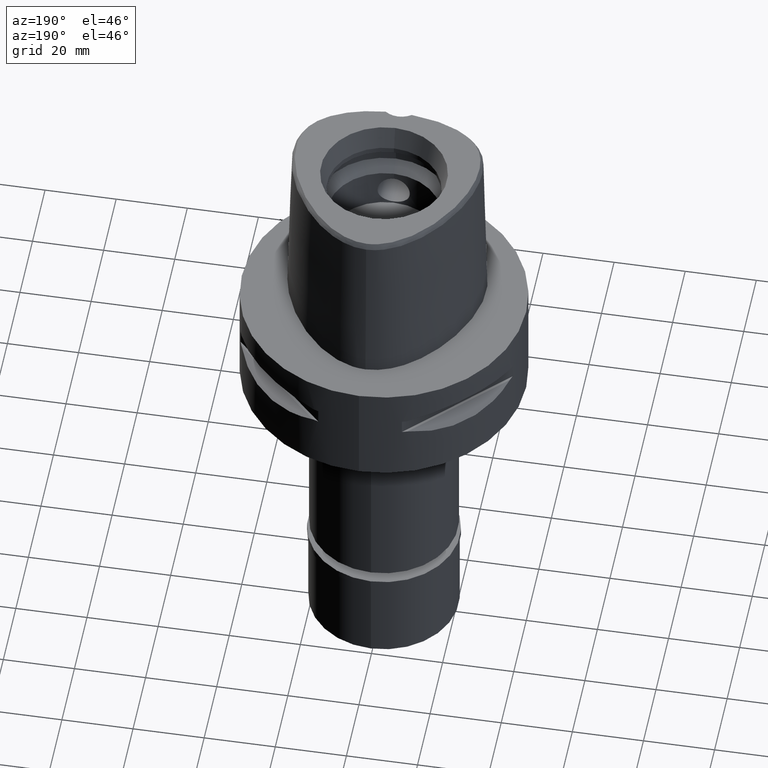
[diagram: clean part render]
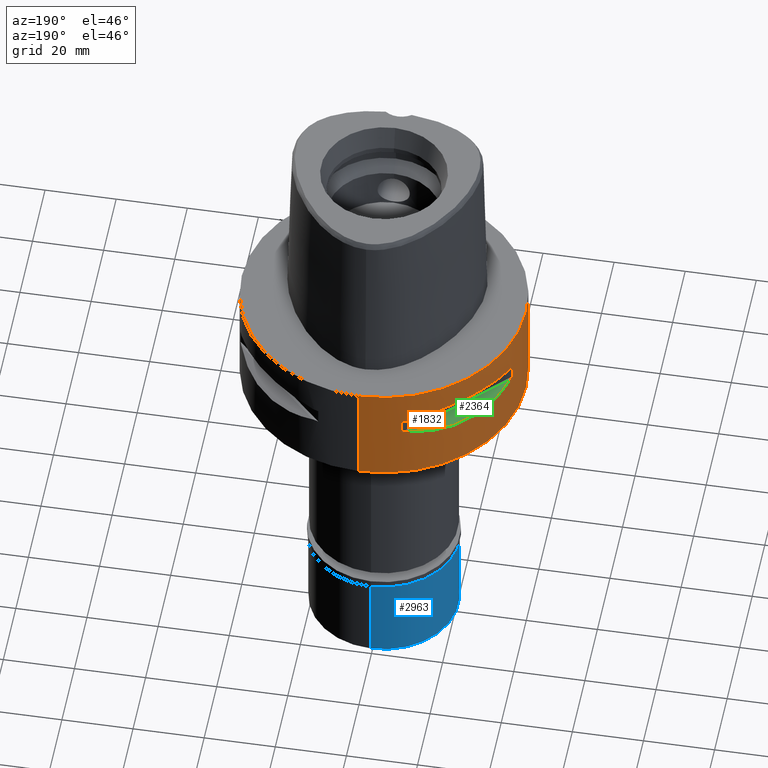
[diagram: same view with three faces highlighted in distinct colors, each labeled with its STEP entity id]
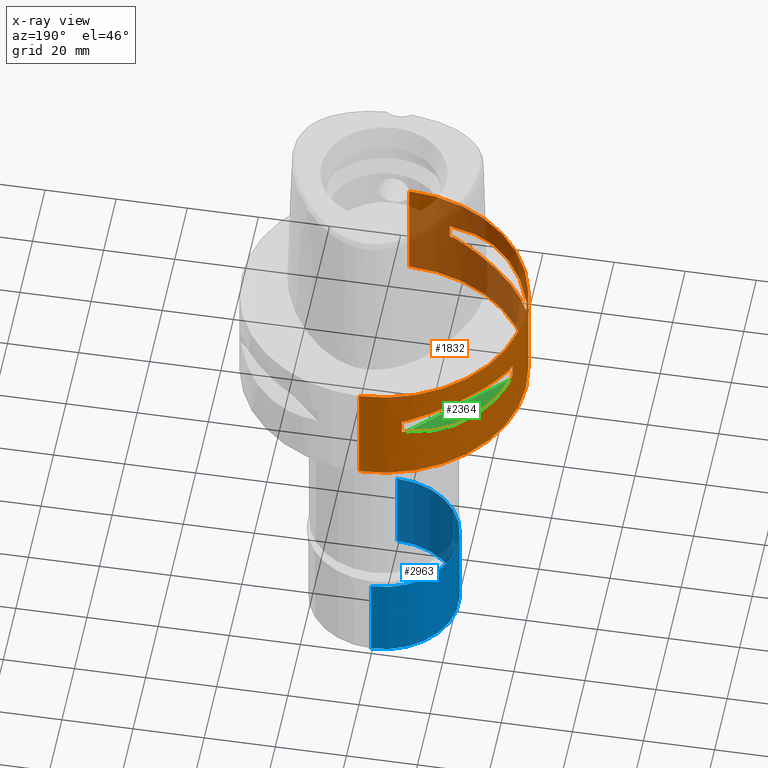
[diagram: x-ray of the same camera — body ghosted, the three highlighted faces saturated]
A machine part, auxiliary view with three faces highlighted in distinct colors.
The next image is the same camera in x-ray (body ghosted, the three faces saturated) — at least one of them is partly hidden behind the body in this view.
Their STEP definitions:

[orange] entity #1832 — the highlighted cylindrical surface (partial cylindrical patch) has radius 40 mm, axis along (0, 0, -1).
#71 = CARTESIAN_POINT ( 'NONE',  ( -11.76033600280999991, 38.23211342708000160, -9.950000000000001066 ) ) ;
#76 = CARTESIAN_POINT ( 'NONE',  ( -38.23211342708000160, 11.76033600280999991, -9.950000000000001066 ) ) ;
#97 = VECTOR ( 'NONE', #1204, 1000.000000000000000 ) ;
#108 = CARTESIAN_POINT ( 'NONE',  ( -37.74622163926999718, 13.23717311056000057, -14.05000000000000071 ) ) ;
#133 = CARTESIAN_POINT ( 'NONE',  ( -23.95303639238277782, 32.16767032370128732, -16.14729882780219228 ) ) ;
#187 = CARTESIAN_POINT ( 'NONE',  ( -11.76033600280999991, 38.23211342708000160, -14.05000000000000071 ) ) ;
#207 = VERTEX_POINT ( 'NONE', #76 ) ;
#232 = CARTESIAN_POINT ( 'NONE',  ( 0.0000000000000000000, 1.291390049700999962E-14, -9.950000000000001066 ) ) ;
#262 = DIRECTION ( 'NONE',  ( 0.0000000000000000000, 0.0000000000000000000, 1.000000000000000000 ) ) ;
#288 = VERTEX_POINT ( 'NONE', #591 ) ;
#290 = CARTESIAN_POINT ( 'NONE',  ( -37.74622163926999718, 13.23717311056000057, -9.950000000002001244 ) ) ;
#292 = CARTESIAN_POINT ( 'NONE',  ( -11.76033600280999991, -38.23211342708000160, -9.950000000000001066 ) ) ;
#296 = DIRECTION ( 'NONE',  ( 0.0000000000000000000, 0.0000000000000000000, -1.000000000000000000 ) ) ;
#317 = CARTESIAN_POINT ( 'NONE',  ( 0.0000000000000000000, 40.00000000000000000, -30.00000000000000000 ) ) ;
#347 = CARTESIAN_POINT ( 'NONE',  ( -33.76566745674986691, -21.44484052678344455, -15.77571175125594394 ) ) ;
#357 = LINE ( 'NONE', #4229, #3936 ) ;
#396 = CARTESIAN_POINT ( 'NONE',  ( -25.62819065485258463, -30.77249687755037399, -16.26160051742709101 ) ) ;
#413 = LINE ( 'NONE', #71, #1920 ) ;
#414 = DIRECTION ( 'NONE',  ( 0.0000000000000000000, 1.000000000000000000, 0.0000000000000000000 ) ) ;
#420 = B_SPLINE_CURVE_WITH_KNOTS ( 'NONE', 3,
 ( #879, #3166, #4347, #2443, #3629, #1243, #2754, #3209, #4690, #1618, #3966, #133, #4296, #809, #4740, #3988, #1271, #495, #1980, #2053, #4318, #2844, #1218, #3942, #3606, #108 ),
 .UNSPECIFIED., .F., .F.,
 ( 4, 1, 1, 1, 1, 1, 1, 2, 2, 2, 1, 1, 1, 1, 1, 1, 2, 2, 4 ),
 ( 0.0000000000000000000, 0.1250000000000191513, 0.1875000000000286160, 0.2187500000000333344, 0.2343750000000358602, 0.2421875000000370537, 0.2460937500000373590, 0.2480468750000373868, 0.2500000000000374145, 0.5000000000000354161, 0.6250000000000345279, 0.6875000000000339728, 0.7187500000000336398, 0.7343750000000335287, 0.7421875000000334177, 0.7460937500000334177, 0.7480468750000331957, 0.7500000000000330846, 1.000000000000000000 ),
 .UNSPECIFIED. ) ;
#495 = CARTESIAN_POINT ( 'NONE',  ( -33.39247868354666338, 22.02254759438567788, -15.85920599531292652 ) ) ;
#591 = CARTESIAN_POINT ( 'NONE',  ( -38.23211342708000160, -11.76033600280999991, -9.950000000000001066 ) ) ;
#647 = EDGE_LOOP ( 'NONE', ( #3137, #4172, #1458, #4934, #1466, #1773, #4357, #4636 ) ) ;
#701 = DIRECTION ( 'NONE',  ( 0.0000000000000000000, 0.0000000000000000000, -1.000000000000000000 ) ) ;
#705 = VERTEX_POINT ( 'NONE', #187 ) ;
#724 = CARTESIAN_POINT ( 'NONE',  ( -13.23717311056000057, 37.74622163926999718, -9.950000000002001244 ) ) ;
#735 = VERTEX_POINT ( 'NONE', #2167 ) ;
#752 = CARTESIAN_POINT ( 'NONE',  ( -26.20795918968521221, 30.36058330523860960, -7.669882118585189090 ) ) ;
#806 = CARTESIAN_POINT ( 'NONE',  ( -30.34851826271897224, -26.21995747454407422, -16.33009976522122741 ) ) ;
#809 = CARTESIAN_POINT ( 'NONE',  ( -29.31642813391150426, 27.25214773984385630, -16.33014064577301028 ) ) ;
#814 = CARTESIAN_POINT ( 'NONE',  ( -36.74073341983640972, -16.10435486224564983, -9.189966798093660572 ) ) ;
#826 = DIRECTION ( 'NONE',  ( 0.0000000000000000000, 0.0000000000000000000, 1.000000000000000000 ) ) ;
#837 = CARTESIAN_POINT ( 'NONE',  ( -35.41596287858682501, -18.83173199168497192, -8.619939612229350345 ) ) ;
#848 = CARTESIAN_POINT ( 'NONE',  ( -37.74622163926999718, -13.23717311056000057, -9.950000000002001244 ) ) ;
#879 = CARTESIAN_POINT ( 'NONE',  ( -13.23717311056000057, 37.74622163926999718, -14.05000000000000071 ) ) ;
#918 = AXIS2_PLACEMENT_3D ( 'NONE', #1600, #3170, #3099 ) ;
#961 = CARTESIAN_POINT ( 'NONE',  ( -38.23211342708000160, -11.76033600280999991, -14.05000000000000071 ) ) ;
#970 = ORIENTED_EDGE ( 'NONE', *, *, #1305, .T. ) ;
#1037 = DIRECTION ( 'NONE',  ( 0.0000000000000000000, 0.0000000000000000000, 1.000000000000000000 ) ) ;
#1050 = ORIENTED_EDGE ( 'NONE', *, *, #4009, .F. ) ;
#1059 = CARTESIAN_POINT ( 'NONE',  ( 0.0000000000000000000, 1.291390049700999962E-14, -14.05000000000000071 ) ) ;
#1077 = VERTEX_POINT ( 'NONE', #3943 ) ;
#1084 = LINE ( 'NONE', #2239, #4574 ) ;
#1171 = CARTESIAN_POINT ( 'NONE',  ( 0.0000000000000000000, 1.291390049700999962E-14, 5.450000000000000178 ) ) ;
#1196 = CARTESIAN_POINT ( 'NONE',  ( -21.52391145898895886, -33.71529052282375005, -15.78742602700008035 ) ) ;
#1204 = DIRECTION ( 'NONE',  ( 0.0000000000000000000, 0.0000000000000000000, -1.000000000000000000 ) ) ;
#1218 = CARTESIAN_POINT ( 'NONE',  ( -33.72697758561022852, 21.50560509406268750, -15.78472370821743276 ) ) ;
#1238 = AXIS2_PLACEMENT_3D ( 'NONE', #1975, #826, #414 ) ;
#1243 = CARTESIAN_POINT ( 'NONE',  ( -20.91613153242406398, 34.09685321779756606, -15.69507322892952139 ) ) ;
#1263 = LINE ( 'NONE', #4731, #2077 ) ;
#1271 = CARTESIAN_POINT ( 'NONE',  ( -33.03835700910098438, 22.55421454657008340, -15.93168855142969598 ) ) ;
#1305 = EDGE_CURVE ( 'NONE', #4615, #4543, #2379, .T. ) ;
#1325 = CIRCLE ( 'NONE', #3678, 39.99999999999999289 ) ;
#1345 = AXIS2_PLACEMENT_3D ( 'NONE', #232, #262, #2515 ) ;
#1373 = VERTEX_POINT ( 'NONE', #2462 ) ;
#1449 = CARTESIAN_POINT ( 'NONE',  ( -34.09685321779600997, -20.91613153242858658, -15.69507322893076662 ) ) ;
#1458 = ORIENTED_EDGE ( 'NONE', *, *, #2558, .T. ) ;
#1466 = ORIENTED_EDGE ( 'NONE', *, *, #4043, .T. ) ;
#1468 = CARTESIAN_POINT ( 'NONE',  ( -36.74070924255632065, 16.10442380453153177, -9.189948522856575153 ) ) ;
#1493 = CIRCLE ( 'NONE', #4331, 39.99999999999997868 ) ;
#1503 = CARTESIAN_POINT ( 'NONE',  ( -37.74622163926999718, -13.23717311056000057, -14.05000000000000071 ) ) ;
#1570 = CARTESIAN_POINT ( 'NONE',  ( -27.25214773983183036, -29.31642813391925273, -16.33014064577127655 ) ) ;
#1572 = CIRCLE ( 'NONE', #4803, 39.99999999999999289 ) ;
#1593 = ORIENTED_EDGE ( 'NONE', *, *, #3123, .T. ) ;
#1600 = CARTESIAN_POINT ( 'NONE',  ( 0.0000000000000000000, 1.291390049700999962E-14, -14.05000000000000071 ) ) ;
#1618 = CARTESIAN_POINT ( 'NONE',  ( -21.44484052678305730, 33.76566745674997350, -15.77571175125580893 ) ) ;
#1637 = ORIENTED_EDGE ( 'NONE', *, *, #2464, .T. ) ;
#1725 = DIRECTION ( 'NONE',  ( -0.9436555409818374596, 0.3309293277639132058, 0.0000000000000000000 ) ) ;
#1750 = VECTOR ( 'NONE', #4211, 1000.000000000000000 ) ;
#1773 = ORIENTED_EDGE ( 'NONE', *, *, #2428, .F. ) ;
#1818 = ORIENTED_EDGE ( 'NONE', *, *, #3214, .F. ) ;
#1832 = ADVANCED_FACE ( 'NONE', ( #1932, #2621, #3485 ), #4166, .T. ) ;
#1843 = DIRECTION ( 'NONE',  ( 0.0000000000000000000, 0.0000000000000000000, 1.000000000000000000 ) ) ;
#1869 = CARTESIAN_POINT ( 'NONE',  ( -30.36058330523860960, 26.20795918968521576, -7.669863843575454254 ) ) ;
#1896 = EDGE_CURVE ( 'NONE', #2179, #3882, #4366, .T. ) ;
#1897 = CARTESIAN_POINT ( 'NONE',  ( -18.83173199168500744, 35.41596287858683212, -8.619939612229350345 ) ) ;
#1916 = LINE ( 'NONE', #4676, #97 ) ;
#1920 = VECTOR ( 'NONE', #2001, 1000.000000000000000 ) ;
#1932 = FACE_OUTER_BOUND ( 'NONE', #3853, .T. ) ;
#1935 = EDGE_CURVE ( 'NONE', #4832, #1077, #1325, .T. ) ;
#1941 = CARTESIAN_POINT ( 'NONE',  ( -32.22577213862143708, -23.88355431031445875, -7.859897272588790784 ) ) ;
#1950 = VERTEX_POINT ( 'NONE', #4046 ) ;
#1957 = CARTESIAN_POINT ( 'NONE',  ( -23.60097336452268024, -32.30995221952120744, -16.06165603927522056 ) ) ;
#1975 = CARTESIAN_POINT ( 'NONE',  ( 0.0000000000000000000, 1.291390049700999962E-14, -30.00000000000000000 ) ) ;
#1980 = CARTESIAN_POINT ( 'NONE',  ( -33.56701934068217952, 21.75464223249340634, -15.82109001420632310 ) ) ;
#1985 = CARTESIAN_POINT ( 'NONE',  ( -23.88364259926271060, -32.22570670466006959, -7.859869859733161768 ) ) ;
#2001 = DIRECTION ( 'NONE',  ( 0.0000000000000000000, 0.0000000000000000000, -1.000000000000000000 ) ) ;
#2006 = CARTESIAN_POINT ( 'NONE',  ( 0.0000000000000000000, 1.291390049700999962E-14, -14.05000000000000071 ) ) ;
#2053 = CARTESIAN_POINT ( 'NONE',  ( -33.65365962422809787, 21.62017158009728846, -15.80156334789097095 ) ) ;
#2062 = EDGE_CURVE ( 'NONE', #3175, #207, #1493, .T. ) ;
#2072 = CARTESIAN_POINT ( 'NONE',  ( 0.0000000000000000000, 1.291390049700999962E-14, 1.243449787579999883E-14 ) ) ;
#2077 = VECTOR ( 'NONE', #3134, 1000.000000000000000 ) ;
#2105 = CARTESIAN_POINT ( 'NONE',  ( 0.0000000000000000000, 1.291390049700999962E-14, -9.950000000000001066 ) ) ;
#2115 = CARTESIAN_POINT ( 'NONE',  ( 0.0000000000000000000, 1.291390049700999962E-14, -9.950000000000001066 ) ) ;
#2167 = CARTESIAN_POINT ( 'NONE',  ( 0.0000000000000000000, 40.00000000000000000, 1.243449787579999883E-14 ) ) ;
#2179 = VERTEX_POINT ( 'NONE', #5021 ) ;
#2210 = CARTESIAN_POINT ( 'NONE',  ( -23.88355431031448006, 32.22577213862143708, -7.859897272588790784 ) ) ;
#2239 = CARTESIAN_POINT ( 'NONE',  ( -38.23211342708000160, -11.76033600280999991, -9.950000000000001066 ) ) ;
#2289 = CARTESIAN_POINT ( 'NONE',  ( -11.76033600280999991, -38.23211342708000160, -14.05000000000000071 ) ) ;
#2353 = VERTEX_POINT ( 'NONE', #2466 ) ;
#2370 = CARTESIAN_POINT ( 'NONE',  ( -37.74622163926999718, -13.23717311056000057, -9.950000000002001244 ) ) ;
#2379 = CIRCLE ( 'NONE', #1238, 40.00000000000000000 ) ;
#2397 = CARTESIAN_POINT ( 'NONE',  ( -37.74622163926999718, 13.23717311056000057, -9.950000000002001244 ) ) ;
#2404 = CIRCLE ( 'NONE', #3060, 40.00000000000000000 ) ;
#2428 = EDGE_CURVE ( 'NONE', #288, #4257, #1084, .T. ) ;
#2439 = VERTEX_POINT ( 'NONE', #2641 ) ;
#2443 = CARTESIAN_POINT ( 'NONE',  ( -19.18269457494219310, 35.11589783530285303, -15.40342377741356117 ) ) ;
#2462 = CARTESIAN_POINT ( 'NONE',  ( -13.23717311056000057, 37.74622163926999718, -9.950000000002001244 ) ) ;
#2464 = EDGE_CURVE ( 'NONE', #1373, #3175, #4720, .T. ) ;
#2466 = CARTESIAN_POINT ( 'NONE',  ( -13.23717311056000057, -37.74622163926999718, -9.950000000002001244 ) ) ;
#2468 = DIRECTION ( 'NONE',  ( 0.0000000000000000000, 0.0000000000000000000, -1.000000000000000000 ) ) ;
#2493 = EDGE_CURVE ( 'NONE', #2353, #4559, #4334, .T. ) ;
#2515 = DIRECTION ( 'NONE',  ( -0.9558028356769561196, -0.2940084000702865574, 0.0000000000000000000 ) ) ;
#2551 = VERTEX_POINT ( 'NONE', #3349 ) ;
#2558 = EDGE_CURVE ( 'NONE', #1950, #3882, #1572, .T. ) ;
#2612 = DIRECTION ( 'NONE',  ( 0.0000000000000000000, 0.0000000000000000000, -1.000000000000000000 ) ) ;
#2621 = FACE_BOUND ( 'NONE', #3437, .T. ) ;
#2641 = CARTESIAN_POINT ( 'NONE',  ( 0.0000000000000000000, -40.00000000000000000, 1.243449787579999883E-14 ) ) ;
#2670 = CARTESIAN_POINT ( 'NONE',  ( -32.22570670466009801, 23.88364259926271060, -7.859869859733161768 ) ) ;
#2676 = CARTESIAN_POINT ( 'NONE',  ( -35.11589783529782949, -19.18269457495653185, -15.40342377741739988 ) ) ;
#2687 = CARTESIAN_POINT ( 'NONE',  ( -30.36058330523857407, -26.20795918968521576, -7.669882118585189090 ) ) ;
#2690 = CARTESIAN_POINT ( 'NONE',  ( -13.23717311056000057, 37.74622163926999718, -14.05000000000000071 ) ) ;
#2693 = CARTESIAN_POINT ( 'NONE',  ( -35.41591128510521003, 18.83182902082666388, -8.619912199373718664 ) ) ;
#2735 = CARTESIAN_POINT ( 'NONE',  ( -16.10442380453150690, -36.74070924255632065, -9.189948522856575153 ) ) ;
#2751 = CARTESIAN_POINT ( 'NONE',  ( -21.50560509406269460, -33.72697758561022852, -15.78472370821745407 ) ) ;
#2754 = CARTESIAN_POINT ( 'NONE',  ( -21.20128033779905863, 33.91944728533289322, -15.73905907260483872 ) ) ;
#2844 = CARTESIAN_POINT ( 'NONE',  ( -33.71529052282350136, 21.52391145898932123, -15.78742602700011410 ) ) ;
#2934 = CARTESIAN_POINT ( 'NONE',  ( -13.23717311056000057, -37.74622163926999718, -14.05000000000000071 ) ) ;
#2990 = EDGE_CURVE ( 'NONE', #3380, #2353, #3521, .T. ) ;
#3015 = EDGE_CURVE ( 'NONE', #5012, #705, #3691, .T. ) ;
#3024 = DIRECTION ( 'NONE',  ( -0.3309293277639132058, -0.9436555409818374596, 0.0000000000000000000 ) ) ;
#3052 = LINE ( 'NONE', #2289, #1750 ) ;
#3060 = AXIS2_PLACEMENT_3D ( 'NONE', #2072, #4381, #4775 ) ;
#3099 = DIRECTION ( 'NONE',  ( -0.3309293277639132058, 0.9436555409818374596, 0.0000000000000000000 ) ) ;
#3123 = EDGE_CURVE ( 'NONE', #735, #4615, #357, .T. ) ;
#3134 = DIRECTION ( 'NONE',  ( 0.0000000000000000000, 0.0000000000000000000, 1.000000000000000000 ) ) ;
#3137 = ORIENTED_EDGE ( 'NONE', *, *, #2493, .T. ) ;
#3138 = CARTESIAN_POINT ( 'NONE',  ( -21.62017158009599527, -33.65365962422892210, -15.80156334789078265 ) ) ;
#3166 = CARTESIAN_POINT ( 'NONE',  ( -14.69039122918836426, 37.23659447744591233, -14.43521939501172469 ) ) ;
#3170 = DIRECTION ( 'NONE',  ( 0.0000000000000000000, 0.0000000000000000000, -1.000000000000000000 ) ) ;
#3175 = VERTEX_POINT ( 'NONE', #2397 ) ;
#3209 = CARTESIAN_POINT ( 'NONE',  ( -21.34345216682169877, 33.82993376593478985, -15.76055673748776798 ) ) ;
#3214 = EDGE_CURVE ( 'NONE', #2439, #4543, #1916, .T. ) ;
#3280 = DIRECTION ( 'NONE',  ( -0.2940084000702865574, 0.9558028356769561196, 0.0000000000000000000 ) ) ;
#3288 = CARTESIAN_POINT ( 'NONE',  ( -16.14402792110914930, -36.72682052670094777, -14.82054974552934468 ) ) ;
#3336 = DIRECTION ( 'NONE',  ( -0.9558028356769561196, 0.2940084000702865574, 0.0000000000000000000 ) ) ;
#3349 = CARTESIAN_POINT ( 'NONE',  ( -11.76033600280999991, 38.23211342708000160, -9.950000000000001066 ) ) ;
#3363 = AXIS2_PLACEMENT_3D ( 'NONE', #4530, #1843, #3024 ) ;
#3380 = VERTEX_POINT ( 'NONE', #848 ) ;
#3386 = CARTESIAN_POINT ( 'NONE',  ( -37.23659447744208251, -14.69039122919928531, -14.43521939501465035 ) ) ;
#3409 = DIRECTION ( 'NONE',  ( 0.0000000000000000000, -1.000000000000000000, 0.0000000000000000000 ) ) ;
#3428 = DIRECTION ( 'NONE',  ( -0.2940084000702865574, -0.9558028356769561196, 0.0000000000000000000 ) ) ;
#3437 = EDGE_LOOP ( 'NONE', ( #3556, #4000, #4710, #1050, #4874, #3479, #3778, #1637 ) ) ;
#3461 = CARTESIAN_POINT ( 'NONE',  ( -33.75216276490080247, -21.46607685731505555, -15.77886817953058696 ) ) ;
#3463 = CIRCLE ( 'NONE', #3865, 39.99999999999997868 ) ;
#3479 = ORIENTED_EDGE ( 'NONE', *, *, #4809, .F. ) ;
#3485 = FACE_BOUND ( 'NONE', #647, .T. ) ;
#3505 = CARTESIAN_POINT ( 'NONE',  ( -22.02254759438074316, -33.39247868354982529, -15.85920599531222308 ) ) ;
#3519 = EDGE_CURVE ( 'NONE', #2439, #735, #2404, .T. ) ;
#3521 = B_SPLINE_CURVE_WITH_KNOTS ( 'NONE', 3,
 ( #2370, #814, #837, #1941, #2687, #3541, #1985, #3878, #2735, #4982 ),
 .UNSPECIFIED., .F., .F.,
 ( 4, 2, 2, 2, 4 ),
 ( 0.0000000000000000000, 0.2500000000000000000, 0.5000000000000000000, 0.7500000000000000000, 1.000000000000000000 ),
 .UNSPECIFIED. ) ;
#3541 = CARTESIAN_POINT ( 'NONE',  ( -26.20795918968520510, -30.36058330523858473, -7.669863843575454254 ) ) ;
#3556 = ORIENTED_EDGE ( 'NONE', *, *, #2062, .T. ) ;
#3599 = CARTESIAN_POINT ( 'NONE',  ( -38.23211342708000160, 11.76033600280999991, -14.05000000000000071 ) ) ;
#3606 = CARTESIAN_POINT ( 'NONE',  ( -36.72682052670077013, 16.14402792110960050, -14.82054974552945303 ) ) ;
#3629 = CARTESIAN_POINT ( 'NONE',  ( -20.34261333235522784, 34.44518065740082591, -15.60313948594118116 ) ) ;
#3637 = DIRECTION ( 'NONE',  ( 0.0000000000000000000, 0.0000000000000000000, -1.000000000000000000 ) ) ;
#3660 = DIRECTION ( 'NONE',  ( 0.0000000000000000000, 0.0000000000000000000, 1.000000000000000000 ) ) ;
#3678 = AXIS2_PLACEMENT_3D ( 'NONE', #4847, #3637, #3336 ) ;
#3691 = CIRCLE ( 'NONE', #918, 39.99999999999997868 ) ;
#3738 = CARTESIAN_POINT ( 'NONE',  ( -18.89342208872277595, -35.39137327286401558, -15.39779115588540925 ) ) ;
#3778 = ORIENTED_EDGE ( 'NONE', *, *, #4131, .T. ) ;
#3810 = CARTESIAN_POINT ( 'NONE',  ( -36.35358138588213706, -16.81132763103370209, -14.94059947015962386 ) ) ;
#3853 = EDGE_LOOP ( 'NONE', ( #970, #1818, #4152, #1593 ) ) ;
#3858 = CARTESIAN_POINT ( 'NONE',  ( -16.10435486224568891, 36.74073341983641683, -9.189966798093660572 ) ) ;
#3865 = AXIS2_PLACEMENT_3D ( 'NONE', #2006, #2468, #4016 ) ;
#3878 = CARTESIAN_POINT ( 'NONE',  ( -18.83182902082664967, -35.41591128510518871, -8.619912199373718664 ) ) ;
#3882 = VERTEX_POINT ( 'NONE', #4066 ) ;
#3893 = CARTESIAN_POINT ( 'NONE',  ( -32.16767032366980317, -23.95303639242290217, -16.14729882780574499 ) ) ;
#3922 = DIRECTION ( 'NONE',  ( 0.0000000000000000000, 0.0000000000000000000, -1.000000000000000000 ) ) ;
#3936 = VECTOR ( 'NONE', #3922, 1000.000000000000000 ) ;
#3942 = CARTESIAN_POINT ( 'NONE',  ( -35.39137327286383794, 18.89342208872325202, -15.39779115588552827 ) ) ;
#3943 = CARTESIAN_POINT ( 'NONE',  ( -37.74622163926999718, 13.23717311056000057, -14.05000000000000071 ) ) ;
#3966 = CARTESIAN_POINT ( 'NONE',  ( -21.46607685731531490, 33.75216276490056089, -15.77886817953056564 ) ) ;
#3988 = CARTESIAN_POINT ( 'NONE',  ( -32.30995221951103247, 23.60097336453846850, -16.06165603927749785 ) ) ;
#4000 = ORIENTED_EDGE ( 'NONE', *, *, #4714, .F. ) ;
#4009 = EDGE_CURVE ( 'NONE', #5012, #1077, #420, .T. ) ;
#4016 = DIRECTION ( 'NONE',  ( -0.9436555409818374596, -0.3309293277639132058, 0.0000000000000000000 ) ) ;
#4043 = EDGE_CURVE ( 'NONE', #2179, #4257, #3463, .T. ) ;
#4046 = CARTESIAN_POINT ( 'NONE',  ( -11.76033600280999991, -38.23211342708000160, -14.05000000000000071 ) ) ;
#4066 = CARTESIAN_POINT ( 'NONE',  ( -13.23717311056000057, -37.74622163926999718, -14.05000000000000071 ) ) ;
#4102 = AXIS2_PLACEMENT_3D ( 'NONE', #2105, #1037, #3280 ) ;
#4131 = EDGE_CURVE ( 'NONE', #2551, #1373, #4745, .T. ) ;
#4152 = ORIENTED_EDGE ( 'NONE', *, *, #3519, .T. ) ;
#4166 = CYLINDRICAL_SURFACE ( 'NONE', #4879, 40.00000000000000000 ) ;
#4172 = ORIENTED_EDGE ( 'NONE', *, *, #5000, .F. ) ;
#4187 = CIRCLE ( 'NONE', #1345, 39.99999999999999289 ) ;
#4196 = CARTESIAN_POINT ( 'NONE',  ( -33.79139713908553944, -21.40429668490394732, -15.76966389594752016 ) ) ;
#4211 = DIRECTION ( 'NONE',  ( 0.0000000000000000000, 0.0000000000000000000, 1.000000000000000000 ) ) ;
#4229 = CARTESIAN_POINT ( 'NONE',  ( 0.0000000000000000000, 40.00000000000000000, 0.0000000000000000000 ) ) ;
#4257 = VERTEX_POINT ( 'NONE', #961 ) ;
#4269 = EDGE_CURVE ( 'NONE', #288, #3380, #4187, .T. ) ;
#4294 = CARTESIAN_POINT ( 'NONE',  ( -22.55421454656086766, -33.03835700910691031, -15.93168855142837081 ) ) ;
#4296 = CARTESIAN_POINT ( 'NONE',  ( -26.21995747455951431, 30.34851826269486708, -16.33009976521767115 ) ) ;
#4318 = CARTESIAN_POINT ( 'NONE',  ( -33.69065616467168667, 21.56243030661679327, -15.79309434609251639 ) ) ;
#4331 = AXIS2_PLACEMENT_3D ( 'NONE', #2115, #3660, #1725 ) ;
#4334 = CIRCLE ( 'NONE', #3363, 39.99999999999997868 ) ;
#4347 = CARTESIAN_POINT ( 'NONE',  ( -16.81132763101458849, 36.35358138588883037, -14.94059947015453105 ) ) ;
#4357 = ORIENTED_EDGE ( 'NONE', *, *, #4269, .T. ) ;
#4366 = B_SPLINE_CURVE_WITH_KNOTS ( 'NONE', 3,
 ( #1503, #3386, #3810, #2676, #4940, #1449, #4567, #4538, #4196, #347, #3461, #3893, #806, #1570, #396, #1957, #4294, #3505, #5040, #3138, #4666, #1196, #2751, #3738, #3288, #2934 ),
 .UNSPECIFIED., .F., .F.,
 ( 4, 1, 1, 1, 1, 1, 1, 2, 2, 2, 1, 1, 1, 1, 1, 1, 2, 2, 4 ),
 ( 0.0000000000000000000, 0.1249999999999758526, 0.1874999999999638900, 0.2187499999999580058, 0.2343749999999549805, 0.2421874999999535649, 0.2460937499999528988, 0.2480468749999527323, 0.2499999999999525380, 0.4999999999999500400, 0.6249999999999488187, 0.6874999999999481526, 0.7187499999999477085, 0.7343749999999477085, 0.7421874999999478195, 0.7460937499999479305, 0.7480468749999480416, 0.7499999999999482636, 1.000000000000000000 ),
 .UNSPECIFIED. ) ;
#4381 = DIRECTION ( 'NONE',  ( 0.0000000000000000000, 0.0000000000000000000, -1.000000000000000000 ) ) ;
#4530 = CARTESIAN_POINT ( 'NONE',  ( 0.0000000000000000000, 1.291390049700999962E-14, -9.950000000000001066 ) ) ;
#4538 = CARTESIAN_POINT ( 'NONE',  ( -33.82993376593436352, -21.34345216682292090, -15.76055673748811792 ) ) ;
#4543 = VERTEX_POINT ( 'NONE', #4993 ) ;
#4559 = VERTEX_POINT ( 'NONE', #292 ) ;
#4567 = CARTESIAN_POINT ( 'NONE',  ( -33.91944728533206188, -21.20128033780140697, -15.73905907260549064 ) ) ;
#4574 = VECTOR ( 'NONE', #2612, 1000.000000000000000 ) ;
#4615 = VERTEX_POINT ( 'NONE', #317 ) ;
#4636 = ORIENTED_EDGE ( 'NONE', *, *, #2990, .T. ) ;
#4666 = CARTESIAN_POINT ( 'NONE',  ( -21.56243030661606852, -33.69065616467215563, -15.79309434609241869 ) ) ;
#4676 = CARTESIAN_POINT ( 'NONE',  ( 0.0000000000000000000, -40.00000000000000000, 0.0000000000000000000 ) ) ;
#4690 = CARTESIAN_POINT ( 'NONE',  ( -21.40429668490322612, 33.79139713908578102, -15.76966389594729101 ) ) ;
#4710 = ORIENTED_EDGE ( 'NONE', *, *, #1935, .T. ) ;
#4714 = EDGE_CURVE ( 'NONE', #4832, #207, #1263, .T. ) ;
#4720 = B_SPLINE_CURVE_WITH_KNOTS ( 'NONE', 3,
 ( #724, #3858, #1897, #2210, #752, #1869, #2670, #2693, #1468, #290 ),
 .UNSPECIFIED., .F., .F.,
 ( 4, 2, 2, 2, 4 ),
 ( 0.0000000000000000000, 0.2500000000000000000, 0.5000000000000000000, 0.7500000000000000000, 1.000000000000000000 ),
 .UNSPECIFIED. ) ;
#4731 = CARTESIAN_POINT ( 'NONE',  ( -38.23211342708000160, 11.76033600280999991, -14.05000000000000071 ) ) ;
#4740 = CARTESIAN_POINT ( 'NONE',  ( -30.77249687753683105, 25.62819065487364512, -16.26160051743014279 ) ) ;
#4745 = CIRCLE ( 'NONE', #4102, 39.99999999999999289 ) ;
#4775 = DIRECTION ( 'NONE',  ( 0.0000000000000000000, -1.000000000000000000, 0.0000000000000000000 ) ) ;
#4803 = AXIS2_PLACEMENT_3D ( 'NONE', #1059, #701, #3428 ) ;
#4809 = EDGE_CURVE ( 'NONE', #2551, #705, #413, .T. ) ;
#4832 = VERTEX_POINT ( 'NONE', #3599 ) ;
#4847 = CARTESIAN_POINT ( 'NONE',  ( 0.0000000000000000000, 1.291390049700999962E-14, -14.05000000000000071 ) ) ;
#4874 = ORIENTED_EDGE ( 'NONE', *, *, #3015, .T. ) ;
#4879 = AXIS2_PLACEMENT_3D ( 'NONE', #1171, #296, #3409 ) ;
#4934 = ORIENTED_EDGE ( 'NONE', *, *, #1896, .F. ) ;
#4940 = CARTESIAN_POINT ( 'NONE',  ( -34.44518065739791268, -20.34261333236362645, -15.60313948594344780 ) ) ;
#4982 = CARTESIAN_POINT ( 'NONE',  ( -13.23717311056000057, -37.74622163926999718, -9.950000000002001244 ) ) ;
#4993 = CARTESIAN_POINT ( 'NONE',  ( 0.0000000000000000000, -40.00000000000000000, -30.00000000000000000 ) ) ;
#5000 = EDGE_CURVE ( 'NONE', #1950, #4559, #3052, .T. ) ;
#5012 = VERTEX_POINT ( 'NONE', #2690 ) ;
#5021 = CARTESIAN_POINT ( 'NONE',  ( -37.74622163926999718, -13.23717311056000057, -14.05000000000000071 ) ) ;
#5040 = CARTESIAN_POINT ( 'NONE',  ( -21.75464223249087681, -33.56701934068381377, -15.82109001420596606 ) ) ;

[blue] entity #2963 — the highlighted cylindrical surface (partial cylindrical patch) has radius 21 mm, axis along (0, 0, -1).
#29 = LINE ( 'NONE', #4618, #3509 ) ;
#352 = CIRCLE ( 'NONE', #3207, 21.00000000000000000 ) ;
#392 = CARTESIAN_POINT ( 'NONE',  ( 0.0000000000000000000, 0.0000000000000000000, -27.09999999999999787 ) ) ;
#523 = CARTESIAN_POINT ( 'NONE',  ( 0.0000000000000000000, -21.00000000000000000, -27.09999999999999787 ) ) ;
#573 = EDGE_CURVE ( 'NONE', #2240, #1117, #29, .T. ) ;
#1017 = DIRECTION ( 'NONE',  ( 0.0000000000000000000, 0.0000000000000000000, -1.000000000000000000 ) ) ;
#1106 = DIRECTION ( 'NONE',  ( 0.0000000000000000000, -1.000000000000000000, 0.0000000000000000000 ) ) ;
#1117 = VERTEX_POINT ( 'NONE', #523 ) ;
#1335 = AXIS2_PLACEMENT_3D ( 'NONE', #4899, #4147, #1106 ) ;
#1431 = AXIS2_PLACEMENT_3D ( 'NONE', #392, #3982, #3202 ) ;
#1457 = DIRECTION ( 'NONE',  ( 0.0000000000000000000, 0.0000000000000000000, -1.000000000000000000 ) ) ;
#1504 = CARTESIAN_POINT ( 'NONE',  ( 0.0000000000000000000, -21.00000000000000000, -2.299999999999999822 ) ) ;
#1766 = ORIENTED_EDGE ( 'NONE', *, *, #3272, .T. ) ;
#1864 = VERTEX_POINT ( 'NONE', #3788 ) ;
#2003 = DIRECTION ( 'NONE',  ( 0.0000000000000000000, 0.0000000000000000000, -1.000000000000000000 ) ) ;
#2066 = EDGE_LOOP ( 'NONE', ( #4939, #4191, #3933, #1766 ) ) ;
#2240 = VERTEX_POINT ( 'NONE', #1504 ) ;
#2602 = FACE_OUTER_BOUND ( 'NONE', #2066, .T. ) ;
#2890 = EDGE_CURVE ( 'NONE', #2240, #1864, #352, .T. ) ;
#2963 = ADVANCED_FACE ( 'NONE', ( #2602 ), #4579, .T. ) ;
#3187 = CARTESIAN_POINT ( 'NONE',  ( 0.0000000000000000000, 21.00000000000000000, -27.09999999999999787 ) ) ;
#3202 = DIRECTION ( 'NONE',  ( 0.0000000000000000000, 1.000000000000000000, 0.0000000000000000000 ) ) ;
#3207 = AXIS2_PLACEMENT_3D ( 'NONE', #4926, #1457, #4547 ) ;
#3272 = EDGE_CURVE ( 'NONE', #1864, #4090, #3308, .T. ) ;
#3308 = LINE ( 'NONE', #4492, #4499 ) ;
#3509 = VECTOR ( 'NONE', #2003, 1000.000000000000000 ) ;
#3788 = CARTESIAN_POINT ( 'NONE',  ( 0.0000000000000000000, 21.00000000000000000, -2.299999999999999822 ) ) ;
#3933 = ORIENTED_EDGE ( 'NONE', *, *, #2890, .T. ) ;
#3982 = DIRECTION ( 'NONE',  ( 0.0000000000000000000, 0.0000000000000000000, 1.000000000000000000 ) ) ;
#4090 = VERTEX_POINT ( 'NONE', #3187 ) ;
#4147 = DIRECTION ( 'NONE',  ( 0.0000000000000000000, 0.0000000000000000000, -1.000000000000000000 ) ) ;
#4191 = ORIENTED_EDGE ( 'NONE', *, *, #573, .F. ) ;
#4270 = CIRCLE ( 'NONE', #1431, 21.00000000000000000 ) ;
#4492 = CARTESIAN_POINT ( 'NONE',  ( 0.0000000000000000000, 21.00000000000000000, -2.299999999999999822 ) ) ;
#4499 = VECTOR ( 'NONE', #1017, 1000.000000000000000 ) ;
#4547 = DIRECTION ( 'NONE',  ( 0.0000000000000000000, -1.000000000000000000, 0.0000000000000000000 ) ) ;
#4579 = CYLINDRICAL_SURFACE ( 'NONE', #1335, 21.00000000000000000 ) ;
#4618 = CARTESIAN_POINT ( 'NONE',  ( 0.0000000000000000000, -21.00000000000000000, -2.299999999999999822 ) ) ;
#4694 = EDGE_CURVE ( 'NONE', #4090, #1117, #4270, .T. ) ;
#4899 = CARTESIAN_POINT ( 'NONE',  ( 0.0000000000000000000, 0.0000000000000000000, 0.0000000000000000000 ) ) ;
#4926 = CARTESIAN_POINT ( 'NONE',  ( 0.0000000000000000000, 0.0000000000000000000, -2.299999999999999822 ) ) ;
#4939 = ORIENTED_EDGE ( 'NONE', *, *, #4694, .T. ) ;

[green] entity #2364 — the highlighted planar face has unit normal (0.3536, -0.3536, -0.866).
#108 = CARTESIAN_POINT ( 'NONE',  ( -37.74622163926999718, 13.23717311056000057, -14.05000000000000071 ) ) ;
#129 = CARTESIAN_POINT ( 'NONE',  ( -13.23717311056000057, 37.74622163926999718, -14.05000000000000071 ) ) ;
#133 = CARTESIAN_POINT ( 'NONE',  ( -23.95303639238277782, 32.16767032370128732, -16.14729882780219228 ) ) ;
#420 = B_SPLINE_CURVE_WITH_KNOTS ( 'NONE', 3,
 ( #879, #3166, #4347, #2443, #3629, #1243, #2754, #3209, #4690, #1618, #3966, #133, #4296, #809, #4740, #3988, #1271, #495, #1980, #2053, #4318, #2844, #1218, #3942, #3606, #108 ),
 .UNSPECIFIED., .F., .F.,
 ( 4, 1, 1, 1, 1, 1, 1, 2, 2, 2, 1, 1, 1, 1, 1, 1, 2, 2, 4 ),
 ( 0.0000000000000000000, 0.1250000000000191513, 0.1875000000000286160, 0.2187500000000333344, 0.2343750000000358602, 0.2421875000000370537, 0.2460937500000373590, 0.2480468750000373868, 0.2500000000000374145, 0.5000000000000354161, 0.6250000000000345279, 0.6875000000000339728, 0.7187500000000336398, 0.7343750000000335287, 0.7421875000000334177, 0.7460937500000334177, 0.7480468750000331957, 0.7500000000000330846, 1.000000000000000000 ),
 .UNSPECIFIED. ) ;
#495 = CARTESIAN_POINT ( 'NONE',  ( -33.39247868354666338, 22.02254759438567788, -15.85920599531292652 ) ) ;
#536 = DIRECTION ( 'NONE',  ( 0.0000000000000000000, -0.9258200997725358761, 0.3779644730092654448 ) ) ;
#809 = CARTESIAN_POINT ( 'NONE',  ( -29.31642813391150426, 27.25214773984385630, -16.33014064577301028 ) ) ;
#879 = CARTESIAN_POINT ( 'NONE',  ( -13.23717311056000057, 37.74622163926999718, -14.05000000000000071 ) ) ;
#942 = EDGE_CURVE ( 'NONE', #5012, #1077, #4836, .T. ) ;
#983 = FACE_OUTER_BOUND ( 'NONE', #2908, .T. ) ;
#1077 = VERTEX_POINT ( 'NONE', #3943 ) ;
#1218 = CARTESIAN_POINT ( 'NONE',  ( -33.72697758561022852, 21.50560509406268750, -15.78472370821743276 ) ) ;
#1243 = CARTESIAN_POINT ( 'NONE',  ( -20.91613153242406398, 34.09685321779756606, -15.69507322892952139 ) ) ;
#1271 = CARTESIAN_POINT ( 'NONE',  ( -33.03835700910098438, 22.55421454657008340, -15.93168855142969598 ) ) ;
#1312 = DIRECTION ( 'NONE',  ( 0.3535533905933054277, -0.3535533905933049836, -0.8660254037844130615 ) ) ;
#1367 = DIRECTION ( 'NONE',  ( -0.7071067811865474617, -0.7071067811865474617, 0.0000000000000000000 ) ) ;
#1399 = VECTOR ( 'NONE', #1367, 1000.000000000000114 ) ;
#1618 = CARTESIAN_POINT ( 'NONE',  ( -21.44484052678305730, 33.76566745674997350, -15.77571175125580893 ) ) ;
#1980 = CARTESIAN_POINT ( 'NONE',  ( -33.56701934068217952, 21.75464223249340634, -15.82109001420632310 ) ) ;
#2053 = CARTESIAN_POINT ( 'NONE',  ( -33.65365962422809787, 21.62017158009728846, -15.80156334789097095 ) ) ;
#2364 = ADVANCED_FACE ( 'NONE', ( #983 ), #3703, .F. ) ;
#2443 = CARTESIAN_POINT ( 'NONE',  ( -19.18269457494219310, 35.11589783530285303, -15.40342377741356117 ) ) ;
#2567 = CARTESIAN_POINT ( 'NONE',  ( -43.16936690458000214, 7.814027845251999338, -14.05000000000000071 ) ) ;
#2690 = CARTESIAN_POINT ( 'NONE',  ( -13.23717311056000057, 37.74622163926999718, -14.05000000000000071 ) ) ;
#2715 = AXIS2_PLACEMENT_3D ( 'NONE', #2567, #1312, #536 ) ;
#2754 = CARTESIAN_POINT ( 'NONE',  ( -21.20128033779905863, 33.91944728533289322, -15.73905907260483872 ) ) ;
#2844 = CARTESIAN_POINT ( 'NONE',  ( -33.71529052282350136, 21.52391145898932123, -15.78742602700011410 ) ) ;
#2908 = EDGE_LOOP ( 'NONE', ( #3809, #4083 ) ) ;
#3166 = CARTESIAN_POINT ( 'NONE',  ( -14.69039122918836426, 37.23659447744591233, -14.43521939501172469 ) ) ;
#3209 = CARTESIAN_POINT ( 'NONE',  ( -21.34345216682169877, 33.82993376593478985, -15.76055673748776798 ) ) ;
#3606 = CARTESIAN_POINT ( 'NONE',  ( -36.72682052670077013, 16.14402792110960050, -14.82054974552945303 ) ) ;
#3629 = CARTESIAN_POINT ( 'NONE',  ( -20.34261333235522784, 34.44518065740082591, -15.60313948594118116 ) ) ;
#3703 = PLANE ( 'NONE',  #2715 ) ;
#3809 = ORIENTED_EDGE ( 'NONE', *, *, #942, .F. ) ;
#3942 = CARTESIAN_POINT ( 'NONE',  ( -35.39137327286383794, 18.89342208872325202, -15.39779115588552827 ) ) ;
#3943 = CARTESIAN_POINT ( 'NONE',  ( -37.74622163926999718, 13.23717311056000057, -14.05000000000000071 ) ) ;
#3966 = CARTESIAN_POINT ( 'NONE',  ( -21.46607685731531490, 33.75216276490056089, -15.77886817953056564 ) ) ;
#3988 = CARTESIAN_POINT ( 'NONE',  ( -32.30995221951103247, 23.60097336453846850, -16.06165603927749785 ) ) ;
#4009 = EDGE_CURVE ( 'NONE', #5012, #1077, #420, .T. ) ;
#4083 = ORIENTED_EDGE ( 'NONE', *, *, #4009, .T. ) ;
#4296 = CARTESIAN_POINT ( 'NONE',  ( -26.21995747455951431, 30.34851826269486708, -16.33009976521767115 ) ) ;
#4318 = CARTESIAN_POINT ( 'NONE',  ( -33.69065616467168667, 21.56243030661679327, -15.79309434609251639 ) ) ;
#4347 = CARTESIAN_POINT ( 'NONE',  ( -16.81132763101458849, 36.35358138588883037, -14.94059947015453105 ) ) ;
#4690 = CARTESIAN_POINT ( 'NONE',  ( -21.40429668490322612, 33.79139713908578102, -15.76966389594729101 ) ) ;
#4740 = CARTESIAN_POINT ( 'NONE',  ( -30.77249687753683105, 25.62819065487364512, -16.26160051743014279 ) ) ;
#4836 = LINE ( 'NONE', #129, #1399 ) ;
#5012 = VERTEX_POINT ( 'NONE', #2690 ) ;